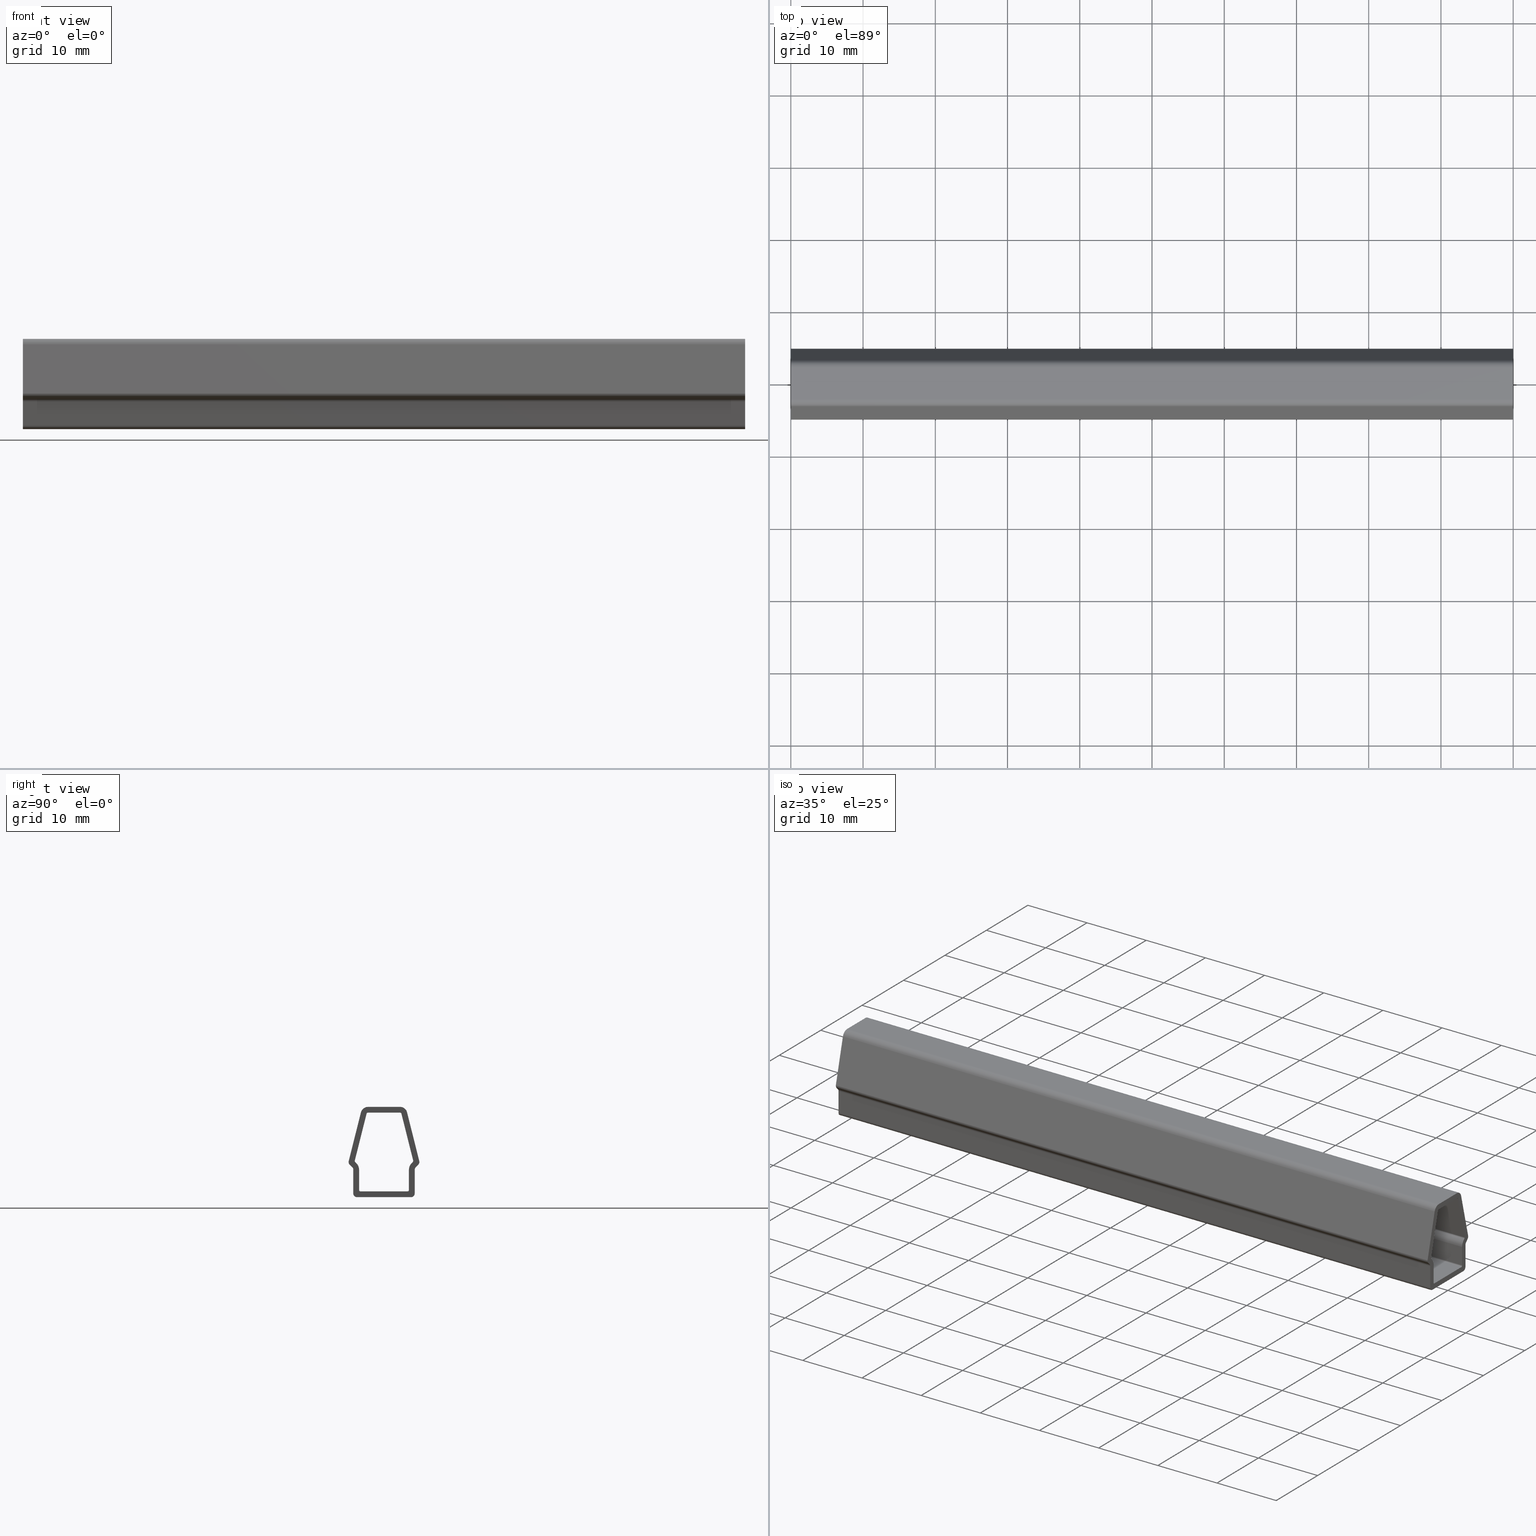
[diagram: canonical four-view strip — front | top / right | iso, engineering-drawing reading convention]
A machine part, canonical four-view strip (front | top / right | iso — engineering-drawing reading convention). The complete STEP part file that produces these views, byte-faithful:
ISO-10303-21;
HEADER;
/****************************************************************
 * Generated by software with PDE/Lib inside                    *
 * PDElib Version v4.4, created Mon 02/23/2004                  *
 * International Technegroup Inc. (www.iti-oh.com)              *
 ****************************************************************/
FILE_DESCRIPTION(('STEP AP203'),'2;1');
FILE_NAME('21.021.00.stp','2011-02-14T09:08:29',(''),(''),'2009.3.110','THINKDESIGN','');
FILE_SCHEMA(('CONFIG_CONTROL_DESIGN'));
ENDSEC;
DATA;
#2=CARTESIAN_POINT('',(100.000000009999990,-3.848279365318895,5.013407116904034));
#3=DIRECTION('',(-1.0,0.0,0.0));
#4=DIRECTION('',(0.0,0.992448656487233,-0.122660768938917));
#5=AXIS2_PLACEMENT_3D('',#2,#3,#4);
#6=CYLINDRICAL_SURFACE('',#5,0.200000000000004);
#7=CARTESIAN_POINT('',(100.0,-4.042261099624227,5.062100923038884));
#8=VERTEX_POINT('',#7);
#9=CARTESIAN_POINT('',(100.0,-4.048279365318905,5.013407116904034));
#10=VERTEX_POINT('',#9);
#11=CARTESIAN_POINT('',(100.0,-3.848279365318895,5.013407116904034));
#12=DIRECTION('',(1.0,0.0,0.0));
#13=DIRECTION('',(0.0,1.0,-6.123234E-017));
#14=AXIS2_PLACEMENT_3D('',#11,#12,#13);
#15=CIRCLE('',#14,0.200000000000004);
#16=EDGE_CURVE('',#8,#10,#15,.T.);
#17=ORIENTED_EDGE('',*,*,#16,.T.);
#18=CARTESIAN_POINT('',(0.0,-4.048279365318905,5.013407116904034));
#19=VERTEX_POINT('',#18);
#20=CARTESIAN_POINT('',(100.0,-4.048279365318905,5.013407116904034));
#21=DIRECTION('',(-1.0,0.0,0.0));
#22=VECTOR('',#21,100.0);
#23=LINE('',#20,#22);
#24=EDGE_CURVE('',#10,#19,#23,.T.);
#25=ORIENTED_EDGE('',*,*,#24,.T.);
#26=CARTESIAN_POINT('',(0.0,-4.042261099624227,5.062100923038884));
#27=VERTEX_POINT('',#26);
#28=CARTESIAN_POINT('',(0.0,-3.848279365318895,5.013407116904034));
#29=DIRECTION('',(-1.0,0.0,0.0));
#30=DIRECTION('',(0.0,1.0,-6.123234E-017));
#31=AXIS2_PLACEMENT_3D('',#28,#29,#30);
#32=CIRCLE('',#31,0.200000000000004);
#33=EDGE_CURVE('',#19,#27,#32,.T.);
#34=ORIENTED_EDGE('',*,*,#33,.T.);
#35=CARTESIAN_POINT('',(100.0,-4.042261099624227,5.062100923038884));
#36=DIRECTION('',(-1.0,0.0,0.0));
#37=VECTOR('',#36,100.0);
#38=LINE('',#35,#37);
#39=EDGE_CURVE('',#8,#27,#38,.T.);
#40=ORIENTED_EDGE('',*,*,#39,.F.);
#41=EDGE_LOOP('',(#17,#25,#34,#40));
#42=FACE_OUTER_BOUND('',#41,.T.);
#43=ADVANCED_FACE('',(#42),#6,.F.);
#44=CARTESIAN_POINT('',(100.000000009999990,-4.402235978646701,4.860256949045294));
#45=DIRECTION('',(-1.0,0.0,0.0));
#46=DIRECTION('',(0.0,0.923879532511289,0.382683432365085));
#47=AXIS2_PLACEMENT_3D('',#44,#45,#46);
#48=CYLINDRICAL_SURFACE('',#47,0.500000000000004);
#49=CARTESIAN_POINT('',(100.0,-4.902235978646708,4.860256949045294));
#50=VERTEX_POINT('',#49);
#51=CARTESIAN_POINT('',(100.0,-4.755789369239977,4.506703558452024));
#52=VERTEX_POINT('',#51);
#53=CARTESIAN_POINT('',(100.0,-4.402235978646701,4.860256949045294));
#54=DIRECTION('',(1.0,0.0,0.0));
#55=DIRECTION('',(0.0,1.0,-6.123234E-017));
#56=AXIS2_PLACEMENT_3D('',#53,#54,#55);
#57=CIRCLE('',#56,0.500000000000004);
#58=EDGE_CURVE('',#50,#52,#57,.T.);
#59=ORIENTED_EDGE('',*,*,#58,.F.);
#60=CARTESIAN_POINT('',(0.0,-4.902235978646708,4.860256949045294));
#61=VERTEX_POINT('',#60);
#62=CARTESIAN_POINT('',(100.0,-4.902235978646708,4.860256949045294));
#63=DIRECTION('',(-1.0,0.0,0.0));
#64=VECTOR('',#63,100.0);
#65=LINE('',#62,#64);
#66=EDGE_CURVE('',#50,#61,#65,.T.);
#67=ORIENTED_EDGE('',*,*,#66,.T.);
#68=CARTESIAN_POINT('',(0.0,-4.755789369239977,4.506703558452024));
#69=VERTEX_POINT('',#68);
#70=CARTESIAN_POINT('',(0.0,-4.402235978646701,4.860256949045294));
#71=DIRECTION('',(1.0,0.0,0.0));
#72=DIRECTION('',(0.0,1.0,-6.123234E-017));
#73=AXIS2_PLACEMENT_3D('',#70,#71,#72);
#74=CIRCLE('',#73,0.500000000000004);
#75=EDGE_CURVE('',#61,#69,#74,.T.);
#76=ORIENTED_EDGE('',*,*,#75,.T.);
#77=CARTESIAN_POINT('',(100.0,-4.755789369239977,4.506703558452024));
#78=DIRECTION('',(-1.0,0.0,0.0));
#79=VECTOR('',#78,100.0);
#80=LINE('',#77,#79);
#81=EDGE_CURVE('',#52,#69,#80,.T.);
#82=ORIENTED_EDGE('',*,*,#81,.F.);
#83=EDGE_LOOP('',(#59,#67,#76,#82));
#84=FACE_OUTER_BOUND('',#83,.T.);
#85=ADVANCED_FACE('',(#84),#48,.T.);
#86=CARTESIAN_POINT('',(100.000000009999990,-2.219997726038471,11.499999999999993));
#87=DIRECTION('',(-1.0,0.0,0.0));
#88=DIRECTION('',(0.0,-1.0,6.123234E-017));
#89=AXIS2_PLACEMENT_3D('',#86,#87,#88);
#90=CYLINDRICAL_SURFACE('',#89,1.000000000000001);
#91=CARTESIAN_POINT('',(0.0,-2.219997726038471,12.499999999999993));
#92=VERTEX_POINT('',#91);
#93=CARTESIAN_POINT('',(0.0,-3.189906397565096,11.743469030674213));
#94=VERTEX_POINT('',#93);
#95=CARTESIAN_POINT('',(0.0,-2.219997726038471,11.499999999999993));
#96=DIRECTION('',(1.0,0.0,0.0));
#97=DIRECTION('',(0.0,-1.0,6.123234E-017));
#98=AXIS2_PLACEMENT_3D('',#95,#96,#97);
#99=CIRCLE('',#98,1.000000000000001);
#100=EDGE_CURVE('',#92,#94,#99,.T.);
#101=ORIENTED_EDGE('',*,*,#100,.T.);
#102=CARTESIAN_POINT('',(100.0,-3.189906397565096,11.743469030674213));
#103=VERTEX_POINT('',#102);
#104=CARTESIAN_POINT('',(100.0,-3.189906397565096,11.743469030674213));
#105=DIRECTION('',(-1.0,0.0,0.0));
#106=VECTOR('',#105,100.0);
#107=LINE('',#104,#106);
#108=EDGE_CURVE('',#103,#94,#107,.T.);
#109=ORIENTED_EDGE('',*,*,#108,.F.);
#110=CARTESIAN_POINT('',(100.0,-2.219997726038471,12.499999999999993));
#111=VERTEX_POINT('',#110);
#112=CARTESIAN_POINT('',(100.0,-2.219997726038471,11.499999999999993));
#113=DIRECTION('',(1.0,0.0,0.0));
#114=DIRECTION('',(0.0,-1.0,6.123234E-017));
#115=AXIS2_PLACEMENT_3D('',#112,#113,#114);
#116=CIRCLE('',#115,1.000000000000001);
#117=EDGE_CURVE('',#111,#103,#116,.T.);
#118=ORIENTED_EDGE('',*,*,#117,.F.);
#119=CARTESIAN_POINT('',(100.0,-2.219997726038471,12.499999999999993));
#120=DIRECTION('',(-1.0,0.0,0.0));
#121=VECTOR('',#120,100.0);
#122=LINE('',#119,#121);
#123=EDGE_CURVE('',#111,#92,#122,.T.);
#124=ORIENTED_EDGE('',*,*,#123,.T.);
#125=EDGE_LOOP('',(#101,#109,#118,#124));
#126=FACE_OUTER_BOUND('',#125,.T.);
#127=ADVANCED_FACE('',(#126),#90,.T.);
#128=CARTESIAN_POINT('',(105.0,-3.105042201722849,12.081542908988805));
#129=DIRECTION('',(0.0,0.969908671526631,-0.243469030674224));
#130=DIRECTION('',(0.0,-0.243469030674224,-0.969908671526631));
#131=AXIS2_PLACEMENT_3D('',#128,#129,#130);
#132=PLANE('',#131);
#133=CARTESIAN_POINT('',(0.0,-4.887190314410020,4.981991464382389));
#134=VERTEX_POINT('',#133);
#135=CARTESIAN_POINT('',(0.0,-3.189906397565096,11.743469030674213));
#136=DIRECTION('',(0.0,-0.243469030674224,-0.969908671526631));
#137=VECTOR('',#136,6.971251793892404);
#138=LINE('',#135,#137);
#139=EDGE_CURVE('',#94,#134,#138,.T.);
#140=ORIENTED_EDGE('',*,*,#139,.T.);
#141=CARTESIAN_POINT('',(100.0,-4.887190314410020,4.981991464382389));
#142=VERTEX_POINT('',#141);
#143=CARTESIAN_POINT('',(100.0,-4.887190314410020,4.981991464382389));
#144=DIRECTION('',(-1.0,0.0,0.0));
#145=VECTOR('',#144,100.0);
#146=LINE('',#143,#145);
#147=EDGE_CURVE('',#142,#134,#146,.T.);
#148=ORIENTED_EDGE('',*,*,#147,.F.);
#149=CARTESIAN_POINT('',(100.0,-3.189906397565096,11.743469030674213));
#150=DIRECTION('',(0.0,-0.243469030674224,-0.969908671526631));
#151=VECTOR('',#150,6.971251793892404);
#152=LINE('',#149,#151);
#153=EDGE_CURVE('',#103,#142,#152,.T.);
#154=ORIENTED_EDGE('',*,*,#153,.F.);
#155=ORIENTED_EDGE('',*,*,#108,.T.);
#156=EDGE_LOOP('',(#140,#148,#154,#155));
#157=FACE_OUTER_BOUND('',#156,.T.);
#158=ADVANCED_FACE('',(#157),#132,.F.);
#159=CARTESIAN_POINT('',(100.000000009999990,-4.402235978646701,4.860256949045301));
#160=DIRECTION('',(-1.0,0.0,0.0));
#161=DIRECTION('',(0.0,0.992448656487236,-0.122660768938892));
#162=AXIS2_PLACEMENT_3D('',#159,#160,#161);
#163=CYLINDRICAL_SURFACE('',#162,0.500000000000004);
#164=ORIENTED_EDGE('',*,*,#66,.F.);
#165=CARTESIAN_POINT('',(100.0,-4.402235978646701,4.860256949045294));
#166=DIRECTION('',(1.0,0.0,0.0));
#167=DIRECTION('',(0.0,1.0,-6.123234E-017));
#168=AXIS2_PLACEMENT_3D('',#165,#166,#167);
#169=CIRCLE('',#168,0.500000000000004);
#170=EDGE_CURVE('',#142,#50,#169,.T.);
#171=ORIENTED_EDGE('',*,*,#170,.F.);
#172=ORIENTED_EDGE('',*,*,#147,.T.);
#173=CARTESIAN_POINT('',(0.0,-4.402235978646701,4.860256949045294));
#174=DIRECTION('',(1.0,0.0,0.0));
#175=DIRECTION('',(0.0,1.0,-6.123234E-017));
#176=AXIS2_PLACEMENT_3D('',#173,#174,#175);
#177=CIRCLE('',#176,0.500000000000004);
#178=EDGE_CURVE('',#134,#61,#177,.T.);
#179=ORIENTED_EDGE('',*,*,#178,.T.);
#180=EDGE_LOOP('',(#164,#171,#172,#179));
#181=FACE_OUTER_BOUND('',#180,.T.);
#182=ADVANCED_FACE('',(#181),#163,.T.);
#183=CARTESIAN_POINT('',(105.0,-4.773802216692253,4.524716405904279));
#184=DIRECTION('',(0.0,0.707106781186554,0.707106781186541));
#185=DIRECTION('',(0.0,0.707106781186541,-0.707106781186554));
#186=AXIS2_PLACEMENT_3D('',#183,#184,#185);
#187=PLANE('',#186);
#188=CARTESIAN_POINT('',(0.0,-4.395532420194698,4.146446609406716));
#189=VERTEX_POINT('',#188);
#190=CARTESIAN_POINT('',(0.0,-4.755789369239992,4.506703558452017));
#191=DIRECTION('',(0.0,0.707106781186540,-0.707106781186554));
#192=VECTOR('',#191,0.509480263279012);
#193=LINE('',#190,#192);
#194=EDGE_CURVE('',#69,#189,#193,.T.);
#195=ORIENTED_EDGE('',*,*,#194,.T.);
#196=CARTESIAN_POINT('',(100.0,-4.395532420194698,4.146446609406716));
#197=VERTEX_POINT('',#196);
#198=CARTESIAN_POINT('',(100.0,-4.395532420194698,4.146446609406716));
#199=DIRECTION('',(-1.0,0.0,0.0));
#200=VECTOR('',#199,100.0);
#201=LINE('',#198,#200);
#202=EDGE_CURVE('',#197,#189,#201,.T.);
#203=ORIENTED_EDGE('',*,*,#202,.F.);
#204=CARTESIAN_POINT('',(100.0,-4.755789369239992,4.506703558452017));
#205=DIRECTION('',(0.0,0.707106781186540,-0.707106781186554));
#206=VECTOR('',#205,0.509480263279012);
#207=LINE('',#204,#206);
#208=EDGE_CURVE('',#52,#197,#207,.T.);
#209=ORIENTED_EDGE('',*,*,#208,.F.);
#210=ORIENTED_EDGE('',*,*,#81,.T.);
#211=EDGE_LOOP('',(#195,#203,#209,#210));
#212=FACE_OUTER_BOUND('',#211,.T.);
#213=ADVANCED_FACE('',(#212),#187,.F.);
#214=CARTESIAN_POINT('',(100.000000009999990,-4.749085810787975,3.792893218813447));
#215=DIRECTION('',(-1.0,0.0,0.0));
#216=DIRECTION('',(0.0,-1.0,6.123234E-017));
#217=AXIS2_PLACEMENT_3D('',#214,#215,#216);
#218=CYLINDRICAL_SURFACE('',#217,0.500000000000002);
#219=CARTESIAN_POINT('',(0.0,-4.249085810787975,3.792893218813447));
#220=VERTEX_POINT('',#219);
#221=CARTESIAN_POINT('',(0.0,-4.749085810787975,3.792893218813447));
#222=DIRECTION('',(-1.0,0.0,0.0));
#223=DIRECTION('',(0.0,-1.0,6.123234E-017));
#224=AXIS2_PLACEMENT_3D('',#221,#222,#223);
#225=CIRCLE('',#224,0.500000000000002);
#226=EDGE_CURVE('',#189,#220,#225,.T.);
#227=ORIENTED_EDGE('',*,*,#226,.T.);
#228=CARTESIAN_POINT('',(100.0,-4.249085810787975,3.792893218813447));
#229=VERTEX_POINT('',#228);
#230=CARTESIAN_POINT('',(100.0,-4.249085810787975,3.792893218813447));
#231=DIRECTION('',(-1.0,0.0,0.0));
#232=VECTOR('',#231,100.0);
#233=LINE('',#230,#232);
#234=EDGE_CURVE('',#229,#220,#233,.T.);
#235=ORIENTED_EDGE('',*,*,#234,.F.);
#236=CARTESIAN_POINT('',(100.0,-4.749085810787975,3.792893218813447));
#237=DIRECTION('',(-1.0,0.0,0.0));
#238=DIRECTION('',(0.0,-1.0,6.123234E-017));
#239=AXIS2_PLACEMENT_3D('',#236,#237,#238);
#240=CIRCLE('',#239,0.500000000000002);
#241=EDGE_CURVE('',#197,#229,#240,.T.);
#242=ORIENTED_EDGE('',*,*,#241,.F.);
#243=ORIENTED_EDGE('',*,*,#202,.T.);
#244=EDGE_LOOP('',(#227,#235,#242,#243));
#245=FACE_OUTER_BOUND('',#244,.T.);
#246=ADVANCED_FACE('',(#245),#218,.F.);
#247=CARTESIAN_POINT('',(105.0,-4.249085810787975,0.335355339059326));
#248=DIRECTION('',(0.0,1.0,0.0));
#249=DIRECTION('',(-1.0,0.0,0.0));
#250=AXIS2_PLACEMENT_3D('',#247,#248,#249);
#251=PLANE('',#250);
#252=CARTESIAN_POINT('',(0.0,-4.249085810787975,0.500000000000000));
#253=VERTEX_POINT('',#252);
#254=CARTESIAN_POINT('',(0.0,-4.249085810787975,3.792893218813447));
#255=DIRECTION('',(0.0,0.0,-1.0));
#256=VECTOR('',#255,3.292893218813447);
#257=LINE('',#254,#256);
#258=EDGE_CURVE('',#220,#253,#257,.T.);
#259=ORIENTED_EDGE('',*,*,#258,.T.);
#260=CARTESIAN_POINT('',(100.0,-4.249085810787975,0.500000000000000));
#261=VERTEX_POINT('',#260);
#262=CARTESIAN_POINT('',(100.0,-4.249085810787975,0.500000000000000));
#263=DIRECTION('',(-1.0,0.0,0.0));
#264=VECTOR('',#263,100.0);
#265=LINE('',#262,#264);
#266=EDGE_CURVE('',#261,#253,#265,.T.);
#267=ORIENTED_EDGE('',*,*,#266,.F.);
#268=CARTESIAN_POINT('',(100.0,-4.249085810787975,3.792893218813447));
#269=DIRECTION('',(0.0,0.0,-1.0));
#270=VECTOR('',#269,3.292893218813447);
#271=LINE('',#268,#270);
#272=EDGE_CURVE('',#229,#261,#271,.T.);
#273=ORIENTED_EDGE('',*,*,#272,.F.);
#274=ORIENTED_EDGE('',*,*,#234,.T.);
#275=EDGE_LOOP('',(#259,#267,#273,#274));
#276=FACE_OUTER_BOUND('',#275,.T.);
#277=ADVANCED_FACE('',(#276),#251,.F.);
#278=CARTESIAN_POINT('',(100.000000009999990,-3.749085810787975,0.500000000000000));
#279=DIRECTION('',(-1.0,0.0,0.0));
#280=DIRECTION('',(0.0,0.707106781186547,0.707106781186548));
#281=AXIS2_PLACEMENT_3D('',#278,#279,#280);
#282=CYLINDRICAL_SURFACE('',#281,0.500000000000001);
#283=CARTESIAN_POINT('',(0.0,-3.749085810787975,0.0));
#284=VERTEX_POINT('',#283);
#285=CARTESIAN_POINT('',(0.0,-3.749085810787975,0.500000000000000));
#286=DIRECTION('',(1.0,0.0,0.0));
#287=DIRECTION('',(0.0,1.0,-6.123234E-017));
#288=AXIS2_PLACEMENT_3D('',#285,#286,#287);
#289=CIRCLE('',#288,0.500000000000002);
#290=EDGE_CURVE('',#253,#284,#289,.T.);
#291=ORIENTED_EDGE('',*,*,#290,.T.);
#292=CARTESIAN_POINT('',(100.0,-3.749085810787975,0.0));
#293=VERTEX_POINT('',#292);
#294=CARTESIAN_POINT('',(100.0,-3.749085810787975,0.0));
#295=DIRECTION('',(-1.0,0.0,0.0));
#296=VECTOR('',#295,100.0);
#297=LINE('',#294,#296);
#298=EDGE_CURVE('',#293,#284,#297,.T.);
#299=ORIENTED_EDGE('',*,*,#298,.F.);
#300=CARTESIAN_POINT('',(100.0,-3.749085810787975,0.500000000000000));
#301=DIRECTION('',(1.0,0.0,0.0));
#302=DIRECTION('',(0.0,1.0,-6.123234E-017));
#303=AXIS2_PLACEMENT_3D('',#300,#301,#302);
#304=CIRCLE('',#303,0.500000000000002);
#305=EDGE_CURVE('',#261,#293,#304,.T.);
#306=ORIENTED_EDGE('',*,*,#305,.F.);
#307=ORIENTED_EDGE('',*,*,#266,.T.);
#308=EDGE_LOOP('',(#291,#299,#306,#307));
#309=FACE_OUTER_BOUND('',#308,.T.);
#310=ADVANCED_FACE('',(#309),#282,.T.);
#311=CARTESIAN_POINT('',(105.0,4.123994391866773,0.0));
#312=DIRECTION('',(0.0,0.0,1.0));
#313=DIRECTION('',(-1.0,0.0,0.0));
#314=AXIS2_PLACEMENT_3D('',#311,#312,#313);
#315=PLANE('',#314);
#316=CARTESIAN_POINT('',(0.0,3.749085810787975,0.0));
#317=VERTEX_POINT('',#316);
#318=CARTESIAN_POINT('',(0.0,-3.749085810787975,0.0));
#319=DIRECTION('',(0.0,1.0,0.0));
#320=VECTOR('',#319,7.498171621575949);
#321=LINE('',#318,#320);
#322=EDGE_CURVE('',#284,#317,#321,.T.);
#323=ORIENTED_EDGE('',*,*,#322,.T.);
#324=CARTESIAN_POINT('',(100.0,3.749085810787975,0.0));
#325=VERTEX_POINT('',#324);
#326=CARTESIAN_POINT('',(100.0,3.749085810787975,0.0));
#327=DIRECTION('',(-1.0,0.0,0.0));
#328=VECTOR('',#327,100.0);
#329=LINE('',#326,#328);
#330=EDGE_CURVE('',#325,#317,#329,.T.);
#331=ORIENTED_EDGE('',*,*,#330,.F.);
#332=CARTESIAN_POINT('',(100.0,-3.749085810787975,0.0));
#333=DIRECTION('',(0.0,1.0,0.0));
#334=VECTOR('',#333,7.498171621575949);
#335=LINE('',#332,#334);
#336=EDGE_CURVE('',#293,#325,#335,.T.);
#337=ORIENTED_EDGE('',*,*,#336,.F.);
#338=ORIENTED_EDGE('',*,*,#298,.T.);
#339=EDGE_LOOP('',(#323,#331,#337,#338));
#340=FACE_OUTER_BOUND('',#339,.T.);
#341=ADVANCED_FACE('',(#340),#315,.F.);
#342=CARTESIAN_POINT('',(100.000000009999990,3.749085810787975,0.500000000000000));
#343=DIRECTION('',(-1.0,0.0,0.0));
#344=DIRECTION('',(0.0,-1.0,6.123234E-017));
#345=AXIS2_PLACEMENT_3D('',#342,#343,#344);
#346=CYLINDRICAL_SURFACE('',#345,0.500000000000001);
#347=CARTESIAN_POINT('',(0.0,4.249085810787975,0.500000000000000));
#348=VERTEX_POINT('',#347);
#349=CARTESIAN_POINT('',(0.0,3.749085810787975,0.500000000000000));
#350=DIRECTION('',(1.0,0.0,0.0));
#351=DIRECTION('',(0.0,-1.0,6.123234E-017));
#352=AXIS2_PLACEMENT_3D('',#349,#350,#351);
#353=CIRCLE('',#352,0.500000000000001);
#354=EDGE_CURVE('',#317,#348,#353,.T.);
#355=ORIENTED_EDGE('',*,*,#354,.T.);
#356=CARTESIAN_POINT('',(100.0,4.249085810787975,0.500000000000000));
#357=VERTEX_POINT('',#356);
#358=CARTESIAN_POINT('',(100.0,4.249085810787975,0.500000000000000));
#359=DIRECTION('',(-1.0,0.0,0.0));
#360=VECTOR('',#359,100.0);
#361=LINE('',#358,#360);
#362=EDGE_CURVE('',#357,#348,#361,.T.);
#363=ORIENTED_EDGE('',*,*,#362,.F.);
#364=CARTESIAN_POINT('',(100.0,3.749085810787975,0.500000000000000));
#365=DIRECTION('',(1.0,0.0,0.0));
#366=DIRECTION('',(0.0,-1.0,6.123234E-017));
#367=AXIS2_PLACEMENT_3D('',#364,#365,#366);
#368=CIRCLE('',#367,0.500000000000001);
#369=EDGE_CURVE('',#325,#357,#368,.T.);
#370=ORIENTED_EDGE('',*,*,#369,.F.);
#371=ORIENTED_EDGE('',*,*,#330,.T.);
#372=EDGE_LOOP('',(#355,#363,#370,#371));
#373=FACE_OUTER_BOUND('',#372,.T.);
#374=ADVANCED_FACE('',(#373),#346,.T.);
#375=CARTESIAN_POINT('',(-5.0,4.249085810787975,0.335355339059326));
#376=DIRECTION('',(0.0,-1.0,0.0));
#377=DIRECTION('',(1.0,0.0,0.0));
#378=AXIS2_PLACEMENT_3D('',#375,#376,#377);
#379=PLANE('',#378);
#380=CARTESIAN_POINT('',(0.0,4.249085810787975,3.792893218813447));
#381=VERTEX_POINT('',#380);
#382=CARTESIAN_POINT('',(0.0,4.249085810787975,0.500000000000000));
#383=DIRECTION('',(0.0,0.0,1.0));
#384=VECTOR('',#383,3.292893218813447);
#385=LINE('',#382,#384);
#386=EDGE_CURVE('',#348,#381,#385,.T.);
#387=ORIENTED_EDGE('',*,*,#386,.T.);
#388=CARTESIAN_POINT('',(100.0,4.249085810787975,3.792893218813447));
#389=VERTEX_POINT('',#388);
#390=CARTESIAN_POINT('',(100.0,4.249085810787975,3.792893218813447));
#391=DIRECTION('',(-1.0,0.0,0.0));
#392=VECTOR('',#391,100.0);
#393=LINE('',#390,#392);
#394=EDGE_CURVE('',#389,#381,#393,.T.);
#395=ORIENTED_EDGE('',*,*,#394,.F.);
#396=CARTESIAN_POINT('',(100.0,4.249085810787975,0.500000000000000));
#397=DIRECTION('',(0.0,0.0,1.0));
#398=VECTOR('',#397,3.292893218813447);
#399=LINE('',#396,#398);
#400=EDGE_CURVE('',#357,#389,#399,.T.);
#401=ORIENTED_EDGE('',*,*,#400,.F.);
#402=ORIENTED_EDGE('',*,*,#362,.T.);
#403=EDGE_LOOP('',(#387,#395,#401,#402));
#404=FACE_OUTER_BOUND('',#403,.T.);
#405=ADVANCED_FACE('',(#404),#379,.F.);
#406=CARTESIAN_POINT('',(100.000000009999990,4.749085810787978,3.792893218813454));
#407=DIRECTION('',(-1.0,0.0,0.0));
#408=DIRECTION('',(0.0,0.923879532511287,-0.382683432365090));
#409=AXIS2_PLACEMENT_3D('',#406,#407,#408);
#410=CYLINDRICAL_SURFACE('',#409,0.500000000000004);
#411=CARTESIAN_POINT('',(0.0,4.395532420194705,4.146446609406716));
#412=VERTEX_POINT('',#411);
#413=CARTESIAN_POINT('',(0.0,4.749085810787978,3.792893218813447));
#414=DIRECTION('',(-1.0,0.0,0.0));
#415=DIRECTION('',(0.0,1.0,-6.123234E-017));
#416=AXIS2_PLACEMENT_3D('',#413,#414,#415);
#417=CIRCLE('',#416,0.500000000000004);
#418=EDGE_CURVE('',#381,#412,#417,.T.);
#419=ORIENTED_EDGE('',*,*,#418,.T.);
#420=CARTESIAN_POINT('',(100.0,4.395532420194705,4.146446609406716));
#421=VERTEX_POINT('',#420);
#422=CARTESIAN_POINT('',(100.0,4.395532420194705,4.146446609406716));
#423=DIRECTION('',(-1.0,0.0,0.0));
#424=VECTOR('',#423,100.0);
#425=LINE('',#422,#424);
#426=EDGE_CURVE('',#421,#412,#425,.T.);
#427=ORIENTED_EDGE('',*,*,#426,.F.);
#428=CARTESIAN_POINT('',(100.0,4.749085810787978,3.792893218813447));
#429=DIRECTION('',(-1.0,0.0,0.0));
#430=DIRECTION('',(0.0,1.0,-6.123234E-017));
#431=AXIS2_PLACEMENT_3D('',#428,#429,#430);
#432=CIRCLE('',#431,0.500000000000004);
#433=EDGE_CURVE('',#389,#421,#432,.T.);
#434=ORIENTED_EDGE('',*,*,#433,.F.);
#435=ORIENTED_EDGE('',*,*,#394,.T.);
#436=EDGE_LOOP('',(#419,#427,#434,#435));
#437=FACE_OUTER_BOUND('',#436,.T.);
#438=ADVANCED_FACE('',(#437),#410,.F.);
#439=CARTESIAN_POINT('',(105.0,4.377519572742440,4.128433761954454));
#440=DIRECTION('',(0.0,-0.707106781186548,0.707106781186548));
#441=DIRECTION('',(0.0,0.707106781186548,0.707106781186548));
#442=AXIS2_PLACEMENT_3D('',#439,#440,#441);
#443=PLANE('',#442);
#444=CARTESIAN_POINT('',(0.0,4.755789369239992,4.506703558452003));
#445=VERTEX_POINT('',#444);
#446=CARTESIAN_POINT('',(0.0,4.395532420194705,4.146446609406716));
#447=DIRECTION('',(0.0,0.707106781186547,0.707106781186547));
#448=VECTOR('',#447,0.509480263278997);
#449=LINE('',#446,#448);
#450=EDGE_CURVE('',#412,#445,#449,.T.);
#451=ORIENTED_EDGE('',*,*,#450,.T.);
#452=CARTESIAN_POINT('',(100.0,4.755789369239992,4.506703558452003));
#453=VERTEX_POINT('',#452);
#454=CARTESIAN_POINT('',(100.0,4.755789369239992,4.506703558452003));
#455=DIRECTION('',(-1.0,0.0,0.0));
#456=VECTOR('',#455,100.0);
#457=LINE('',#454,#456);
#458=EDGE_CURVE('',#453,#445,#457,.T.);
#459=ORIENTED_EDGE('',*,*,#458,.F.);
#460=CARTESIAN_POINT('',(100.0,4.395532420194705,4.146446609406716));
#461=DIRECTION('',(0.0,0.707106781186547,0.707106781186547));
#462=VECTOR('',#461,0.509480263278997);
#463=LINE('',#460,#462);
#464=EDGE_CURVE('',#421,#453,#463,.T.);
#465=ORIENTED_EDGE('',*,*,#464,.F.);
#466=ORIENTED_EDGE('',*,*,#426,.T.);
#467=EDGE_LOOP('',(#451,#459,#465,#466));
#468=FACE_OUTER_BOUND('',#467,.T.);
#469=ADVANCED_FACE('',(#468),#443,.F.);
#470=CARTESIAN_POINT('',(100.000000009999990,4.402235978646711,4.860256949045294));
#471=DIRECTION('',(-1.0,0.0,0.0));
#472=DIRECTION('',(0.0,-1.0,6.123234E-017));
#473=AXIS2_PLACEMENT_3D('',#470,#471,#472);
#474=CYLINDRICAL_SURFACE('',#473,0.500000000000001);
#475=CARTESIAN_POINT('',(0.0,4.887190314410038,4.981991464382389));
#476=VERTEX_POINT('',#475);
#477=CARTESIAN_POINT('',(0.0,4.402235978646711,4.860256949045294));
#478=DIRECTION('',(1.0,0.0,0.0));
#479=DIRECTION('',(0.0,-1.0,6.123234E-017));
#480=AXIS2_PLACEMENT_3D('',#477,#478,#479);
#481=CIRCLE('',#480,0.500000000000001);
#482=EDGE_CURVE('',#445,#476,#481,.T.);
#483=ORIENTED_EDGE('',*,*,#482,.T.);
#484=CARTESIAN_POINT('',(100.0,4.887190314410038,4.981991464382389));
#485=VERTEX_POINT('',#484);
#486=CARTESIAN_POINT('',(100.0,4.887190314410038,4.981991464382389));
#487=DIRECTION('',(-1.0,0.0,0.0));
#488=VECTOR('',#487,100.0);
#489=LINE('',#486,#488);
#490=EDGE_CURVE('',#485,#476,#489,.T.);
#491=ORIENTED_EDGE('',*,*,#490,.F.);
#492=CARTESIAN_POINT('',(100.0,4.402235978646711,4.860256949045294));
#493=DIRECTION('',(1.0,0.0,0.0));
#494=DIRECTION('',(0.0,-1.0,6.123234E-017));
#495=AXIS2_PLACEMENT_3D('',#492,#493,#494);
#496=CIRCLE('',#495,0.500000000000001);
#497=EDGE_CURVE('',#453,#485,#496,.T.);
#498=ORIENTED_EDGE('',*,*,#497,.F.);
#499=ORIENTED_EDGE('',*,*,#458,.T.);
#500=EDGE_LOOP('',(#483,#491,#498,#499));
#501=FACE_OUTER_BOUND('',#500,.T.);
#502=ADVANCED_FACE('',(#501),#474,.T.);
#503=CARTESIAN_POINT('',(105.0,4.972054510252281,4.643917586067794));
#504=DIRECTION('',(0.0,-0.969908671526631,-0.243469030674223));
#505=DIRECTION('',(0.0,-0.243469030674223,0.969908671526631));
#506=AXIS2_PLACEMENT_3D('',#503,#504,#505);
#507=PLANE('',#506);
#508=CARTESIAN_POINT('',(0.0,3.189906397565114,11.743469030674213));
#509=VERTEX_POINT('',#508);
#510=CARTESIAN_POINT('',(0.0,4.887190314410034,4.981991464382389));
#511=DIRECTION('',(0.0,-0.243469030674223,0.969908671526631));
#512=VECTOR('',#511,6.971251793892403);
#513=LINE('',#510,#512);
#514=EDGE_CURVE('',#476,#509,#513,.T.);
#515=ORIENTED_EDGE('',*,*,#514,.T.);
#516=CARTESIAN_POINT('',(100.0,3.189906397565114,11.743469030674213));
#517=VERTEX_POINT('',#516);
#518=CARTESIAN_POINT('',(100.0,3.189906397565114,11.743469030674213));
#519=DIRECTION('',(-1.0,0.0,0.0));
#520=VECTOR('',#519,100.0);
#521=LINE('',#518,#520);
#522=EDGE_CURVE('',#517,#509,#521,.T.);
#523=ORIENTED_EDGE('',*,*,#522,.F.);
#524=CARTESIAN_POINT('',(100.0,4.887190314410034,4.981991464382389));
#525=DIRECTION('',(0.0,-0.243469030674223,0.969908671526631));
#526=VECTOR('',#525,6.971251793892403);
#527=LINE('',#524,#526);
#528=EDGE_CURVE('',#485,#517,#527,.T.);
#529=ORIENTED_EDGE('',*,*,#528,.F.);
#530=ORIENTED_EDGE('',*,*,#490,.T.);
#531=EDGE_LOOP('',(#515,#523,#529,#530));
#532=FACE_OUTER_BOUND('',#531,.T.);
#533=ADVANCED_FACE('',(#532),#507,.F.);
#534=CARTESIAN_POINT('',(100.000000009999990,2.219997726038478,11.499999999999993));
#535=DIRECTION('',(-1.0,0.0,0.0));
#536=DIRECTION('',(0.0,-1.0,6.123234E-017));
#537=AXIS2_PLACEMENT_3D('',#534,#535,#536);
#538=CYLINDRICAL_SURFACE('',#537,0.999999999999998);
#539=CARTESIAN_POINT('',(0.0,2.219997726038478,12.499999999999993));
#540=VERTEX_POINT('',#539);
#541=CARTESIAN_POINT('',(0.0,2.219997726038478,11.499999999999993));
#542=DIRECTION('',(1.0,0.0,0.0));
#543=DIRECTION('',(0.0,-1.0,6.123234E-017));
#544=AXIS2_PLACEMENT_3D('',#541,#542,#543);
#545=CIRCLE('',#544,0.999999999999998);
#546=EDGE_CURVE('',#509,#540,#545,.T.);
#547=ORIENTED_EDGE('',*,*,#546,.T.);
#548=CARTESIAN_POINT('',(100.0,2.219997726038478,12.499999999999993));
#549=VERTEX_POINT('',#548);
#550=CARTESIAN_POINT('',(100.0,2.219997726038478,12.499999999999993));
#551=DIRECTION('',(-1.0,0.0,0.0));
#552=VECTOR('',#551,100.0);
#553=LINE('',#550,#552);
#554=EDGE_CURVE('',#549,#540,#553,.T.);
#555=ORIENTED_EDGE('',*,*,#554,.F.);
#556=CARTESIAN_POINT('',(100.0,2.219997726038478,11.499999999999993));
#557=DIRECTION('',(1.0,0.0,0.0));
#558=DIRECTION('',(0.0,-1.0,6.123234E-017));
#559=AXIS2_PLACEMENT_3D('',#556,#557,#558);
#560=CIRCLE('',#559,0.999999999999998);
#561=EDGE_CURVE('',#517,#549,#560,.T.);
#562=ORIENTED_EDGE('',*,*,#561,.F.);
#563=ORIENTED_EDGE('',*,*,#522,.T.);
#564=EDGE_LOOP('',(#547,#555,#562,#563));
#565=FACE_OUTER_BOUND('',#564,.T.);
#566=ADVANCED_FACE('',(#565),#538,.T.);
#567=CARTESIAN_POINT('',(-5.0,2.441997498642326,12.499999999999993));
#568=DIRECTION('',(0.0,0.0,-1.0));
#569=DIRECTION('',(1.0,0.0,0.0));
#570=AXIS2_PLACEMENT_3D('',#567,#568,#569);
#571=PLANE('',#570);
#572=CARTESIAN_POINT('',(0.0,2.219997726038478,12.499999999999993));
#573=DIRECTION('',(0.0,-1.0,0.0));
#574=VECTOR('',#573,4.439995452076950);
#575=LINE('',#572,#574);
#576=EDGE_CURVE('',#540,#92,#575,.T.);
#577=ORIENTED_EDGE('',*,*,#576,.T.);
#578=ORIENTED_EDGE('',*,*,#123,.F.);
#579=CARTESIAN_POINT('',(100.0,2.219997726038478,12.499999999999993));
#580=DIRECTION('',(0.0,-1.0,0.0));
#581=VECTOR('',#580,4.439995452076950);
#582=LINE('',#579,#581);
#583=EDGE_CURVE('',#549,#111,#582,.T.);
#584=ORIENTED_EDGE('',*,*,#583,.F.);
#585=ORIENTED_EDGE('',*,*,#554,.T.);
#586=EDGE_LOOP('',(#577,#578,#584,#585));
#587=FACE_OUTER_BOUND('',#586,.T.);
#588=ADVANCED_FACE('',(#587),#571,.F.);
#589=CARTESIAN_POINT('',(100.0,-5.392456067698348,-0.625000000000000));
#590=DIRECTION('',(1.0,0.0,0.0));
#591=DIRECTION('',(0.0,1.0,0.0));
#592=AXIS2_PLACEMENT_3D('',#589,#590,#591);
#593=PLANE('',#592);
#594=ORIENTED_EDGE('',*,*,#117,.T.);
#595=ORIENTED_EDGE('',*,*,#153,.T.);
#596=ORIENTED_EDGE('',*,*,#170,.T.);
#597=ORIENTED_EDGE('',*,*,#58,.T.);
#598=ORIENTED_EDGE('',*,*,#208,.T.);
#599=ORIENTED_EDGE('',*,*,#241,.T.);
#600=ORIENTED_EDGE('',*,*,#272,.T.);
#601=ORIENTED_EDGE('',*,*,#305,.T.);
#602=ORIENTED_EDGE('',*,*,#336,.T.);
#603=ORIENTED_EDGE('',*,*,#369,.T.);
#604=ORIENTED_EDGE('',*,*,#400,.T.);
#605=ORIENTED_EDGE('',*,*,#433,.T.);
#606=ORIENTED_EDGE('',*,*,#464,.T.);
#607=ORIENTED_EDGE('',*,*,#497,.T.);
#608=ORIENTED_EDGE('',*,*,#528,.T.);
#609=ORIENTED_EDGE('',*,*,#561,.T.);
#610=ORIENTED_EDGE('',*,*,#583,.T.);
#611=EDGE_LOOP('',(#594,#595,#596,#597,#598,#599,#600,#601,#602,#603,#604,#605,#606,#607,#608,#609,#610));
#612=FACE_OUTER_BOUND('',#611,.T.);
#613=CARTESIAN_POINT('',(100.0,2.413979460343803,11.548693806134835));
#614=VERTEX_POINT('',#613);
#615=CARTESIAN_POINT('',(100.0,2.219997726038478,11.699999999999992));
#616=VERTEX_POINT('',#615);
#617=CARTESIAN_POINT('',(100.0,2.219997726038471,11.499999999999993));
#618=DIRECTION('',(1.0,0.0,0.0));
#619=DIRECTION('',(0.0,1.0,-6.123234E-017));
#620=AXIS2_PLACEMENT_3D('',#617,#618,#619);
#621=CIRCLE('',#620,0.200000000000002);
#622=EDGE_CURVE('',#614,#616,#621,.T.);
#623=ORIENTED_EDGE('',*,*,#622,.F.);
#624=CARTESIAN_POINT('',(100.0,4.042261099624245,5.062100923038884));
#625=VERTEX_POINT('',#624);
#626=CARTESIAN_POINT('',(100.0,4.042261099624234,5.062100923038884));
#627=DIRECTION('',(0.0,-0.243469030674223,0.969908671526631));
#628=VECTOR('',#627,6.687838838357935);
#629=LINE('',#626,#628);
#630=EDGE_CURVE('',#625,#614,#629,.T.);
#631=ORIENTED_EDGE('',*,*,#630,.F.);
#632=CARTESIAN_POINT('',(100.0,3.989700721556226,4.871985760666725));
#633=VERTEX_POINT('',#632);
#634=CARTESIAN_POINT('',(100.0,3.848279365318909,5.013407116904034));
#635=DIRECTION('',(1.0,0.0,0.0));
#636=DIRECTION('',(0.0,1.0,-6.123234E-017));
#637=AXIS2_PLACEMENT_3D('',#634,#635,#636);
#638=CIRCLE('',#637,0.200000000000006);
#639=EDGE_CURVE('',#633,#625,#638,.T.);
#640=ORIENTED_EDGE('',*,*,#639,.F.);
#641=CARTESIAN_POINT('',(100.0,3.829846995245454,4.712132034355960));
#642=VERTEX_POINT('',#641);
#643=CARTESIAN_POINT('',(100.0,3.829846995245450,4.712132034355967));
#644=DIRECTION('',(0.0,0.707106781186555,0.707106781186540));
#645=VECTOR('',#644,0.226067307744562);
#646=LINE('',#643,#645);
#647=EDGE_CURVE('',#642,#633,#646,.T.);
#648=ORIENTED_EDGE('',*,*,#647,.F.);
#649=CARTESIAN_POINT('',(100.0,3.449085810787988,3.792893218813475));
#650=VERTEX_POINT('',#649);
#651=CARTESIAN_POINT('',(100.0,4.749085810787989,3.792893218813475));
#652=DIRECTION('',(-1.0,0.0,0.0));
#653=DIRECTION('',(0.0,1.0,-6.123234E-017));
#654=AXIS2_PLACEMENT_3D('',#651,#652,#653);
#655=CIRCLE('',#654,1.300000000000002);
#656=EDGE_CURVE('',#650,#642,#655,.T.);
#657=ORIENTED_EDGE('',*,*,#656,.F.);
#658=CARTESIAN_POINT('',(100.0,3.449085810787974,1.0));
#659=VERTEX_POINT('',#658);
#660=CARTESIAN_POINT('',(100.0,3.449085810787974,1.0));
#661=DIRECTION('',(0.0,0.0,1.0));
#662=VECTOR('',#661,2.792893218813475);
#663=LINE('',#660,#662);
#664=EDGE_CURVE('',#659,#650,#663,.T.);
#665=ORIENTED_EDGE('',*,*,#664,.F.);
#666=CARTESIAN_POINT('',(100.0,3.249085810787975,0.799999999999997));
#667=VERTEX_POINT('',#666);
#668=CARTESIAN_POINT('',(100.0,3.249085810787975,1.0));
#669=DIRECTION('',(1.0,0.0,0.0));
#670=DIRECTION('',(0.0,1.0,-6.123234E-017));
#671=AXIS2_PLACEMENT_3D('',#668,#669,#670);
#672=CIRCLE('',#671,0.199999999999999);
#673=EDGE_CURVE('',#667,#659,#672,.T.);
#674=ORIENTED_EDGE('',*,*,#673,.F.);
#675=CARTESIAN_POINT('',(100.0,-3.249085810787975,0.799999999999997));
#676=VERTEX_POINT('',#675);
#677=CARTESIAN_POINT('',(100.0,-3.249085810787975,0.799999999999997));
#678=DIRECTION('',(0.0,1.0,0.0));
#679=VECTOR('',#678,6.498171621575949);
#680=LINE('',#677,#679);
#681=EDGE_CURVE('',#676,#667,#680,.T.);
#682=ORIENTED_EDGE('',*,*,#681,.F.);
#683=CARTESIAN_POINT('',(100.0,-3.449085810787970,1.0));
#684=VERTEX_POINT('',#683);
#685=CARTESIAN_POINT('',(100.0,-3.249085810787975,1.0));
#686=DIRECTION('',(1.0,0.0,0.0));
#687=DIRECTION('',(0.0,1.0,-6.123234E-017));
#688=AXIS2_PLACEMENT_3D('',#685,#686,#687);
#689=CIRCLE('',#688,0.199999999999999);
#690=EDGE_CURVE('',#684,#676,#689,.T.);
#691=ORIENTED_EDGE('',*,*,#690,.F.);
#692=CARTESIAN_POINT('',(100.0,-3.449085810787970,3.792893218813447));
#693=VERTEX_POINT('',#692);
#694=CARTESIAN_POINT('',(100.0,-3.449085810787970,3.792893218813447));
#695=DIRECTION('',(0.0,0.0,-1.0));
#696=VECTOR('',#695,2.792893218813447);
#697=LINE('',#694,#696);
#698=EDGE_CURVE('',#693,#684,#697,.T.);
#699=ORIENTED_EDGE('',*,*,#698,.F.);
#700=CARTESIAN_POINT('',(100.0,-3.829846995245454,4.712132034355960));
#701=VERTEX_POINT('',#700);
#702=CARTESIAN_POINT('',(100.0,-4.749085810787975,3.792893218813447));
#703=DIRECTION('',(-1.0,0.0,0.0));
#704=DIRECTION('',(0.0,1.0,-6.123234E-017));
#705=AXIS2_PLACEMENT_3D('',#702,#703,#704);
#706=CIRCLE('',#705,1.299999999999998);
#707=EDGE_CURVE('',#701,#693,#706,.T.);
#708=ORIENTED_EDGE('',*,*,#707,.F.);
#709=CARTESIAN_POINT('',(100.0,-3.989700721556211,4.871985760666718));
#710=VERTEX_POINT('',#709);
#711=CARTESIAN_POINT('',(100.0,-3.989700721556211,4.871985760666718));
#712=DIRECTION('',(0.0,0.707106781186544,-0.707106781186551));
#713=VECTOR('',#712,0.226067307744549);
#714=LINE('',#711,#713);
#715=EDGE_CURVE('',#710,#701,#714,.T.);
#716=ORIENTED_EDGE('',*,*,#715,.F.);
#717=CARTESIAN_POINT('',(100.0,-3.848279365318895,5.013407116904034));
#718=DIRECTION('',(1.0,0.0,0.0));
#719=DIRECTION('',(0.0,1.0,-6.123234E-017));
#720=AXIS2_PLACEMENT_3D('',#717,#718,#719);
#721=CIRCLE('',#720,0.200000000000004);
#722=EDGE_CURVE('',#10,#710,#721,.T.);
#723=ORIENTED_EDGE('',*,*,#722,.F.);
#724=ORIENTED_EDGE('',*,*,#16,.F.);
#725=CARTESIAN_POINT('',(100.0,-2.413979460343796,11.548693806134835));
#726=VERTEX_POINT('',#725);
#727=CARTESIAN_POINT('',(100.0,-2.413979460343796,11.548693806134835));
#728=DIRECTION('',(0.0,-0.243469030674223,-0.969908671526631));
#729=VECTOR('',#728,6.687838838357935);
#730=LINE('',#727,#729);
#731=EDGE_CURVE('',#726,#8,#730,.T.);
#732=ORIENTED_EDGE('',*,*,#731,.F.);
#733=CARTESIAN_POINT('',(100.0,-2.219997726038471,11.699999999999996));
#734=VERTEX_POINT('',#733);
#735=CARTESIAN_POINT('',(100.0,-2.219997726038464,11.499999999999993));
#736=DIRECTION('',(1.0,0.0,0.0));
#737=DIRECTION('',(0.0,1.0,-6.123234E-017));
#738=AXIS2_PLACEMENT_3D('',#735,#736,#737);
#739=CIRCLE('',#738,0.200000000000006);
#740=EDGE_CURVE('',#734,#726,#739,.T.);
#741=ORIENTED_EDGE('',*,*,#740,.F.);
#742=CARTESIAN_POINT('',(100.0,2.219997726038478,11.699999999999992));
#743=DIRECTION('',(0.0,-1.0,0.0));
#744=VECTOR('',#743,4.439995452076950);
#745=LINE('',#742,#744);
#746=EDGE_CURVE('',#616,#734,#745,.T.);
#747=ORIENTED_EDGE('',*,*,#746,.F.);
#748=EDGE_LOOP('',(#623,#631,#640,#648,#657,#665,#674,#682,#691,#699,#708,#716,#723,#724,#732,#741,#747));
#749=FACE_BOUND('',#748,.T.);
#750=ADVANCED_FACE('',(#612,#749),#593,.T.);
#751=CARTESIAN_POINT('',(0.0,-5.392456067698348,-0.625000000000000));
#752=DIRECTION('',(1.0,0.0,0.0));
#753=DIRECTION('',(0.0,1.0,0.0));
#754=AXIS2_PLACEMENT_3D('',#751,#752,#753);
#755=PLANE('',#754);
#756=ORIENTED_EDGE('',*,*,#100,.F.);
#757=ORIENTED_EDGE('',*,*,#576,.F.);
#758=ORIENTED_EDGE('',*,*,#546,.F.);
#759=ORIENTED_EDGE('',*,*,#514,.F.);
#760=ORIENTED_EDGE('',*,*,#482,.F.);
#761=ORIENTED_EDGE('',*,*,#450,.F.);
#762=ORIENTED_EDGE('',*,*,#418,.F.);
#763=ORIENTED_EDGE('',*,*,#386,.F.);
#764=ORIENTED_EDGE('',*,*,#354,.F.);
#765=ORIENTED_EDGE('',*,*,#322,.F.);
#766=ORIENTED_EDGE('',*,*,#290,.F.);
#767=ORIENTED_EDGE('',*,*,#258,.F.);
#768=ORIENTED_EDGE('',*,*,#226,.F.);
#769=ORIENTED_EDGE('',*,*,#194,.F.);
#770=ORIENTED_EDGE('',*,*,#75,.F.);
#771=ORIENTED_EDGE('',*,*,#178,.F.);
#772=ORIENTED_EDGE('',*,*,#139,.F.);
#773=EDGE_LOOP('',(#756,#757,#758,#759,#760,#761,#762,#763,#764,#765,#766,#767,#768,#769,#770,#771,#772));
#774=FACE_OUTER_BOUND('',#773,.T.);
#775=CARTESIAN_POINT('',(0.0,2.413979460343803,11.548693806134835));
#776=VERTEX_POINT('',#775);
#777=CARTESIAN_POINT('',(0.0,4.042261099624245,5.062100923038884));
#778=VERTEX_POINT('',#777);
#779=CARTESIAN_POINT('',(0.0,2.413979460343803,11.548693806134835));
#780=DIRECTION('',(0.0,0.243469030674223,-0.969908671526631));
#781=VECTOR('',#780,6.687838838357935);
#782=LINE('',#779,#781);
#783=EDGE_CURVE('',#776,#778,#782,.T.);
#784=ORIENTED_EDGE('',*,*,#783,.F.);
#785=CARTESIAN_POINT('',(0.0,2.219997726038478,11.699999999999992));
#786=VERTEX_POINT('',#785);
#787=CARTESIAN_POINT('',(0.0,2.219997726038471,11.499999999999993));
#788=DIRECTION('',(-1.0,0.0,0.0));
#789=DIRECTION('',(0.0,-1.0,6.123234E-017));
#790=AXIS2_PLACEMENT_3D('',#787,#788,#789);
#791=CIRCLE('',#790,0.200000000000002);
#792=EDGE_CURVE('',#786,#776,#791,.T.);
#793=ORIENTED_EDGE('',*,*,#792,.F.);
#794=CARTESIAN_POINT('',(0.0,-2.219997726038471,11.699999999999996));
#795=VERTEX_POINT('',#794);
#796=CARTESIAN_POINT('',(0.0,-2.219997726038471,11.699999999999992));
#797=DIRECTION('',(0.0,1.0,0.0));
#798=VECTOR('',#797,4.439995452076950);
#799=LINE('',#796,#798);
#800=EDGE_CURVE('',#795,#786,#799,.T.);
#801=ORIENTED_EDGE('',*,*,#800,.F.);
#802=CARTESIAN_POINT('',(0.0,-2.413979460343796,11.548693806134835));
#803=VERTEX_POINT('',#802);
#804=CARTESIAN_POINT('',(0.0,-2.219997726038464,11.499999999999993));
#805=DIRECTION('',(-1.0,0.0,0.0));
#806=DIRECTION('',(0.0,-1.0,6.123234E-017));
#807=AXIS2_PLACEMENT_3D('',#804,#805,#806);
#808=CIRCLE('',#807,0.200000000000006);
#809=EDGE_CURVE('',#803,#795,#808,.T.);
#810=ORIENTED_EDGE('',*,*,#809,.F.);
#811=CARTESIAN_POINT('',(0.0,-4.042261099624227,5.062100923038884));
#812=DIRECTION('',(0.0,0.243469030674223,0.969908671526631));
#813=VECTOR('',#812,6.687838838357935);
#814=LINE('',#811,#813);
#815=EDGE_CURVE('',#27,#803,#814,.T.);
#816=ORIENTED_EDGE('',*,*,#815,.F.);
#817=ORIENTED_EDGE('',*,*,#33,.F.);
#818=CARTESIAN_POINT('',(0.0,-3.989700721556211,4.871985760666718));
#819=VERTEX_POINT('',#818);
#820=CARTESIAN_POINT('',(0.0,-3.848279365318895,5.013407116904034));
#821=DIRECTION('',(-1.0,0.0,0.0));
#822=DIRECTION('',(0.0,1.0,-6.123234E-017));
#823=AXIS2_PLACEMENT_3D('',#820,#821,#822);
#824=CIRCLE('',#823,0.200000000000004);
#825=EDGE_CURVE('',#819,#19,#824,.T.);
#826=ORIENTED_EDGE('',*,*,#825,.F.);
#827=CARTESIAN_POINT('',(0.0,-3.829846995245454,4.712132034355960));
#828=VERTEX_POINT('',#827);
#829=CARTESIAN_POINT('',(0.0,-3.829846995245461,4.712132034355953));
#830=DIRECTION('',(0.0,-0.707106781186551,0.707106781186544));
#831=VECTOR('',#830,0.226067307744551);
#832=LINE('',#829,#831);
#833=EDGE_CURVE('',#828,#819,#832,.T.);
#834=ORIENTED_EDGE('',*,*,#833,.F.);
#835=CARTESIAN_POINT('',(0.0,-3.449085810787970,3.792893218813447));
#836=VERTEX_POINT('',#835);
#837=CARTESIAN_POINT('',(0.0,-4.749085810787975,3.792893218813447));
#838=DIRECTION('',(1.0,0.0,0.0));
#839=DIRECTION('',(0.0,-1.0,6.123234E-017));
#840=AXIS2_PLACEMENT_3D('',#837,#838,#839);
#841=CIRCLE('',#840,1.299999999999998);
#842=EDGE_CURVE('',#836,#828,#841,.T.);
#843=ORIENTED_EDGE('',*,*,#842,.F.);
#844=CARTESIAN_POINT('',(0.0,-3.449085810787970,1.0));
#845=VERTEX_POINT('',#844);
#846=CARTESIAN_POINT('',(0.0,-3.449085810787970,1.0));
#847=DIRECTION('',(0.0,0.0,1.0));
#848=VECTOR('',#847,2.792893218813447);
#849=LINE('',#846,#848);
#850=EDGE_CURVE('',#845,#836,#849,.T.);
#851=ORIENTED_EDGE('',*,*,#850,.F.);
#852=CARTESIAN_POINT('',(0.0,-3.249085810787975,0.799999999999997));
#853=VERTEX_POINT('',#852);
#854=CARTESIAN_POINT('',(0.0,-3.249085810787975,1.0));
#855=DIRECTION('',(-1.0,0.0,0.0));
#856=DIRECTION('',(0.0,1.0,-6.123234E-017));
#857=AXIS2_PLACEMENT_3D('',#854,#855,#856);
#858=CIRCLE('',#857,0.199999999999999);
#859=EDGE_CURVE('',#853,#845,#858,.T.);
#860=ORIENTED_EDGE('',*,*,#859,.F.);
#861=CARTESIAN_POINT('',(0.0,3.249085810787975,0.799999999999997));
#862=VERTEX_POINT('',#861);
#863=CARTESIAN_POINT('',(0.0,3.249085810787975,0.799999999999997));
#864=DIRECTION('',(0.0,-1.0,0.0));
#865=VECTOR('',#864,6.498171621575949);
#866=LINE('',#863,#865);
#867=EDGE_CURVE('',#862,#853,#866,.T.);
#868=ORIENTED_EDGE('',*,*,#867,.F.);
#869=CARTESIAN_POINT('',(0.0,3.449085810787974,1.0));
#870=VERTEX_POINT('',#869);
#871=CARTESIAN_POINT('',(0.0,3.249085810787975,1.0));
#872=DIRECTION('',(-1.0,0.0,0.0));
#873=DIRECTION('',(0.0,-1.0,6.123234E-017));
#874=AXIS2_PLACEMENT_3D('',#871,#872,#873);
#875=CIRCLE('',#874,0.199999999999999);
#876=EDGE_CURVE('',#870,#862,#875,.T.);
#877=ORIENTED_EDGE('',*,*,#876,.F.);
#878=CARTESIAN_POINT('',(0.0,3.449085810787988,3.792893218813475));
#879=VERTEX_POINT('',#878);
#880=CARTESIAN_POINT('',(0.0,3.449085810787974,3.792893218813475));
#881=DIRECTION('',(0.0,0.0,-1.0));
#882=VECTOR('',#881,2.792893218813475);
#883=LINE('',#880,#882);
#884=EDGE_CURVE('',#879,#870,#883,.T.);
#885=ORIENTED_EDGE('',*,*,#884,.F.);
#886=CARTESIAN_POINT('',(0.0,3.829846995245454,4.712132034355960));
#887=VERTEX_POINT('',#886);
#888=CARTESIAN_POINT('',(0.0,4.749085810787989,3.792893218813475));
#889=DIRECTION('',(1.0,0.0,0.0));
#890=DIRECTION('',(0.0,1.0,-6.123234E-017));
#891=AXIS2_PLACEMENT_3D('',#888,#889,#890);
#892=CIRCLE('',#891,1.300000000000002);
#893=EDGE_CURVE('',#887,#879,#892,.T.);
#894=ORIENTED_EDGE('',*,*,#893,.F.);
#895=CARTESIAN_POINT('',(0.0,3.989700721556226,4.871985760666725));
#896=VERTEX_POINT('',#895);
#897=CARTESIAN_POINT('',(0.0,3.989700721556226,4.871985760666725));
#898=DIRECTION('',(0.0,-0.707106781186555,-0.707106781186540));
#899=VECTOR('',#898,0.226067307744562);
#900=LINE('',#897,#899);
#901=EDGE_CURVE('',#896,#887,#900,.T.);
#902=ORIENTED_EDGE('',*,*,#901,.F.);
#903=CARTESIAN_POINT('',(0.0,3.848279365318909,5.013407116904034));
#904=DIRECTION('',(-1.0,0.0,0.0));
#905=DIRECTION('',(0.0,-1.0,6.123234E-017));
#906=AXIS2_PLACEMENT_3D('',#903,#904,#905);
#907=CIRCLE('',#906,0.200000000000006);
#908=EDGE_CURVE('',#778,#896,#907,.T.);
#909=ORIENTED_EDGE('',*,*,#908,.F.);
#910=EDGE_LOOP('',(#784,#793,#801,#810,#816,#817,#826,#834,#843,#851,#860,#868,#877,#885,#894,#902,#909));
#911=FACE_BOUND('',#910,.T.);
#912=ADVANCED_FACE('',(#774,#911),#755,.F.);
#913=CARTESIAN_POINT('',(100.000000009999990,2.219997726038471,11.499999999999993));
#914=DIRECTION('',(-1.0,0.0,0.0));
#915=DIRECTION('',(0.0,-1.0,6.123234E-017));
#916=AXIS2_PLACEMENT_3D('',#913,#914,#915);
#917=CYLINDRICAL_SURFACE('',#916,0.200000000000002);
#918=ORIENTED_EDGE('',*,*,#622,.T.);
#919=CARTESIAN_POINT('',(100.0,2.219997726038478,11.699999999999992));
#920=DIRECTION('',(-1.0,0.0,0.0));
#921=VECTOR('',#920,100.0);
#922=LINE('',#919,#921);
#923=EDGE_CURVE('',#616,#786,#922,.T.);
#924=ORIENTED_EDGE('',*,*,#923,.T.);
#925=ORIENTED_EDGE('',*,*,#792,.T.);
#926=CARTESIAN_POINT('',(100.0,2.413979460343803,11.548693806134835));
#927=DIRECTION('',(-1.0,0.0,0.0));
#928=VECTOR('',#927,100.0);
#929=LINE('',#926,#928);
#930=EDGE_CURVE('',#614,#776,#929,.T.);
#931=ORIENTED_EDGE('',*,*,#930,.F.);
#932=EDGE_LOOP('',(#918,#924,#925,#931));
#933=FACE_OUTER_BOUND('',#932,.T.);
#934=ADVANCED_FACE('',(#933),#917,.F.);
#935=CARTESIAN_POINT('',(105.0,2.332565378379783,11.873023450289633));
#936=DIRECTION('',(0.0,0.969908671526631,0.243469030674223));
#937=DIRECTION('',(0.0,0.243469030674223,-0.969908671526631));
#938=AXIS2_PLACEMENT_3D('',#935,#936,#937);
#939=PLANE('',#938);
#940=ORIENTED_EDGE('',*,*,#630,.T.);
#941=ORIENTED_EDGE('',*,*,#930,.T.);
#942=ORIENTED_EDGE('',*,*,#783,.T.);
#943=CARTESIAN_POINT('',(100.0,4.042261099624245,5.062100923038884));
#944=DIRECTION('',(-1.0,0.0,0.0));
#945=VECTOR('',#944,100.0);
#946=LINE('',#943,#945);
#947=EDGE_CURVE('',#625,#778,#946,.T.);
#948=ORIENTED_EDGE('',*,*,#947,.F.);
#949=EDGE_LOOP('',(#940,#941,#942,#948));
#950=FACE_OUTER_BOUND('',#949,.T.);
#951=ADVANCED_FACE('',(#950),#939,.F.);
#952=CARTESIAN_POINT('',(100.000000009999990,3.848279365318909,5.013407116904034));
#953=DIRECTION('',(-1.0,0.0,0.0));
#954=DIRECTION('',(0.0,-1.0,6.123234E-017));
#955=AXIS2_PLACEMENT_3D('',#952,#953,#954);
#956=CYLINDRICAL_SURFACE('',#955,0.200000000000006);
#957=ORIENTED_EDGE('',*,*,#639,.T.);
#958=ORIENTED_EDGE('',*,*,#947,.T.);
#959=ORIENTED_EDGE('',*,*,#908,.T.);
#960=CARTESIAN_POINT('',(100.0,3.989700721556226,4.871985760666725));
#961=DIRECTION('',(-1.0,0.0,0.0));
#962=VECTOR('',#961,100.0);
#963=LINE('',#960,#962);
#964=EDGE_CURVE('',#633,#896,#963,.T.);
#965=ORIENTED_EDGE('',*,*,#964,.F.);
#966=EDGE_LOOP('',(#957,#958,#959,#965));
#967=FACE_OUTER_BOUND('',#966,.T.);
#968=ADVANCED_FACE('',(#967),#956,.F.);
#969=CARTESIAN_POINT('',(105.0,3.997693407871761,4.879978446982264));
#970=DIRECTION('',(0.0,0.707106781186540,-0.707106781186555));
#971=DIRECTION('',(0.0,-0.707106781186555,-0.707106781186540));
#972=AXIS2_PLACEMENT_3D('',#969,#970,#971);
#973=PLANE('',#972);
#974=ORIENTED_EDGE('',*,*,#647,.T.);
#975=ORIENTED_EDGE('',*,*,#964,.T.);
#976=ORIENTED_EDGE('',*,*,#901,.T.);
#977=CARTESIAN_POINT('',(100.0,3.829846995245454,4.712132034355960));
#978=DIRECTION('',(-1.0,0.0,0.0));
#979=VECTOR('',#978,100.0);
#980=LINE('',#977,#979);
#981=EDGE_CURVE('',#642,#887,#980,.T.);
#982=ORIENTED_EDGE('',*,*,#981,.F.);
#983=EDGE_LOOP('',(#974,#975,#976,#982));
#984=FACE_OUTER_BOUND('',#983,.T.);
#985=ADVANCED_FACE('',(#984),#973,.F.);
#986=CARTESIAN_POINT('',(100.000000009999990,4.749085810787989,3.792893218813475));
#987=DIRECTION('',(-1.0,0.0,0.0));
#988=DIRECTION('',(0.0,0.923879532511292,-0.382683432365076));
#989=AXIS2_PLACEMENT_3D('',#986,#987,#988);
#990=CYLINDRICAL_SURFACE('',#989,1.300000000000002);
#991=ORIENTED_EDGE('',*,*,#656,.T.);
#992=ORIENTED_EDGE('',*,*,#981,.T.);
#993=ORIENTED_EDGE('',*,*,#893,.T.);
#994=CARTESIAN_POINT('',(100.0,3.449085810787988,3.792893218813475));
#995=DIRECTION('',(-1.0,0.0,0.0));
#996=VECTOR('',#995,100.0);
#997=LINE('',#994,#996);
#998=EDGE_CURVE('',#650,#879,#997,.T.);
#999=ORIENTED_EDGE('',*,*,#998,.F.);
#1000=EDGE_LOOP('',(#991,#992,#993,#999));
#1001=FACE_OUTER_BOUND('',#1000,.T.);
#1002=ADVANCED_FACE('',(#1001),#990,.T.);
#1003=CARTESIAN_POINT('',(105.0,3.449085810787974,0.860355339059325));
#1004=DIRECTION('',(0.0,1.0,0.0));
#1005=DIRECTION('',(-1.0,0.0,0.0));
#1006=AXIS2_PLACEMENT_3D('',#1003,#1004,#1005);
#1007=PLANE('',#1006);
#1008=ORIENTED_EDGE('',*,*,#664,.T.);
#1009=ORIENTED_EDGE('',*,*,#998,.T.);
#1010=ORIENTED_EDGE('',*,*,#884,.T.);
#1011=CARTESIAN_POINT('',(100.0,3.449085810787974,1.0));
#1012=DIRECTION('',(-1.0,0.0,0.0));
#1013=VECTOR('',#1012,100.0);
#1014=LINE('',#1011,#1013);
#1015=EDGE_CURVE('',#659,#870,#1014,.T.);
#1016=ORIENTED_EDGE('',*,*,#1015,.F.);
#1017=EDGE_LOOP('',(#1008,#1009,#1010,#1016));
#1018=FACE_OUTER_BOUND('',#1017,.T.);
#1019=ADVANCED_FACE('',(#1018),#1007,.F.);
#1020=CARTESIAN_POINT('',(100.000000009999990,3.249085810787975,1.0));
#1021=DIRECTION('',(-1.0,0.0,0.0));
#1022=DIRECTION('',(0.0,-1.0,6.123234E-017));
#1023=AXIS2_PLACEMENT_3D('',#1020,#1021,#1022);
#1024=CYLINDRICAL_SURFACE('',#1023,0.199999999999999);
#1025=ORIENTED_EDGE('',*,*,#673,.T.);
#1026=ORIENTED_EDGE('',*,*,#1015,.T.);
#1027=ORIENTED_EDGE('',*,*,#876,.T.);
#1028=CARTESIAN_POINT('',(100.0,3.249085810787975,0.799999999999997));
#1029=DIRECTION('',(-1.0,0.0,0.0));
#1030=VECTOR('',#1029,100.0);
#1031=LINE('',#1028,#1030);
#1032=EDGE_CURVE('',#667,#862,#1031,.T.);
#1033=ORIENTED_EDGE('',*,*,#1032,.F.);
#1034=EDGE_LOOP('',(#1025,#1026,#1027,#1033));
#1035=FACE_OUTER_BOUND('',#1034,.T.);
#1036=ADVANCED_FACE('',(#1035),#1024,.F.);
#1037=CARTESIAN_POINT('',(-5.0,3.573994391866773,0.799999999999997));
#1038=DIRECTION('',(0.0,0.0,-1.0));
#1039=DIRECTION('',(1.0,0.0,0.0));
#1040=AXIS2_PLACEMENT_3D('',#1037,#1038,#1039);
#1041=PLANE('',#1040);
#1042=ORIENTED_EDGE('',*,*,#681,.T.);
#1043=ORIENTED_EDGE('',*,*,#1032,.T.);
#1044=ORIENTED_EDGE('',*,*,#867,.T.);
#1045=CARTESIAN_POINT('',(100.0,-3.249085810787975,0.799999999999997));
#1046=DIRECTION('',(-1.0,0.0,0.0));
#1047=VECTOR('',#1046,100.0);
#1048=LINE('',#1045,#1047);
#1049=EDGE_CURVE('',#676,#853,#1048,.T.);
#1050=ORIENTED_EDGE('',*,*,#1049,.F.);
#1051=EDGE_LOOP('',(#1042,#1043,#1044,#1050));
#1052=FACE_OUTER_BOUND('',#1051,.T.);
#1053=ADVANCED_FACE('',(#1052),#1041,.F.);
#1054=CARTESIAN_POINT('',(100.000000009999990,-3.249085810787975,1.0));
#1055=DIRECTION('',(-1.0,0.0,0.0));
#1056=DIRECTION('',(0.0,0.707106781186547,0.707106781186548));
#1057=AXIS2_PLACEMENT_3D('',#1054,#1055,#1056);
#1058=CYLINDRICAL_SURFACE('',#1057,0.199999999999999);
#1059=ORIENTED_EDGE('',*,*,#690,.T.);
#1060=ORIENTED_EDGE('',*,*,#1049,.T.);
#1061=ORIENTED_EDGE('',*,*,#859,.T.);
#1062=CARTESIAN_POINT('',(100.0,-3.449085810787970,1.0));
#1063=DIRECTION('',(-1.0,0.0,0.0));
#1064=VECTOR('',#1063,100.0);
#1065=LINE('',#1062,#1064);
#1066=EDGE_CURVE('',#684,#845,#1065,.T.);
#1067=ORIENTED_EDGE('',*,*,#1066,.F.);
#1068=EDGE_LOOP('',(#1059,#1060,#1061,#1067));
#1069=FACE_OUTER_BOUND('',#1068,.T.);
#1070=ADVANCED_FACE('',(#1069),#1058,.F.);
#1071=CARTESIAN_POINT('',(-5.0,-3.449085810787970,0.860355339059325));
#1072=DIRECTION('',(0.0,-1.0,0.0));
#1073=DIRECTION('',(1.0,0.0,0.0));
#1074=AXIS2_PLACEMENT_3D('',#1071,#1072,#1073);
#1075=PLANE('',#1074);
#1076=ORIENTED_EDGE('',*,*,#698,.T.);
#1077=ORIENTED_EDGE('',*,*,#1066,.T.);
#1078=ORIENTED_EDGE('',*,*,#850,.T.);
#1079=CARTESIAN_POINT('',(100.0,-3.449085810787970,3.792893218813447));
#1080=DIRECTION('',(-1.0,0.0,0.0));
#1081=VECTOR('',#1080,100.0);
#1082=LINE('',#1079,#1081);
#1083=EDGE_CURVE('',#693,#836,#1082,.T.);
#1084=ORIENTED_EDGE('',*,*,#1083,.F.);
#1085=EDGE_LOOP('',(#1076,#1077,#1078,#1084));
#1086=FACE_OUTER_BOUND('',#1085,.T.);
#1087=ADVANCED_FACE('',(#1086),#1075,.F.);
#1088=CARTESIAN_POINT('',(100.000000009999990,-4.749085810787975,3.792893218813447));
#1089=DIRECTION('',(-1.0,0.0,0.0));
#1090=DIRECTION('',(0.0,-1.0,6.123234E-017));
#1091=AXIS2_PLACEMENT_3D('',#1088,#1089,#1090);
#1092=CYLINDRICAL_SURFACE('',#1091,1.299999999999998);
#1093=ORIENTED_EDGE('',*,*,#707,.T.);
#1094=ORIENTED_EDGE('',*,*,#1083,.T.);
#1095=ORIENTED_EDGE('',*,*,#842,.T.);
#1096=CARTESIAN_POINT('',(100.0,-3.829846995245454,4.712132034355960));
#1097=DIRECTION('',(-1.0,0.0,0.0));
#1098=VECTOR('',#1097,100.0);
#1099=LINE('',#1096,#1098);
#1100=EDGE_CURVE('',#701,#828,#1099,.T.);
#1101=ORIENTED_EDGE('',*,*,#1100,.F.);
#1102=EDGE_LOOP('',(#1093,#1094,#1095,#1101));
#1103=FACE_OUTER_BOUND('',#1102,.T.);
#1104=ADVANCED_FACE('',(#1103),#1092,.T.);
#1105=CARTESIAN_POINT('',(105.0,-3.821854308929915,4.704139348040414));
#1106=DIRECTION('',(0.0,-0.707106781186548,-0.707106781186548));
#1107=DIRECTION('',(0.0,-0.707106781186548,0.707106781186548));
#1108=AXIS2_PLACEMENT_3D('',#1105,#1106,#1107);
#1109=PLANE('',#1108);
#1110=ORIENTED_EDGE('',*,*,#715,.T.);
#1111=ORIENTED_EDGE('',*,*,#1100,.T.);
#1112=ORIENTED_EDGE('',*,*,#833,.T.);
#1113=CARTESIAN_POINT('',(100.0,-3.989700721556211,4.871985760666718));
#1114=DIRECTION('',(-1.0,0.0,0.0));
#1115=VECTOR('',#1114,100.0);
#1116=LINE('',#1113,#1115);
#1117=EDGE_CURVE('',#710,#819,#1116,.T.);
#1118=ORIENTED_EDGE('',*,*,#1117,.F.);
#1119=EDGE_LOOP('',(#1110,#1111,#1112,#1118));
#1120=FACE_OUTER_BOUND('',#1119,.T.);
#1121=ADVANCED_FACE('',(#1120),#1109,.F.);
#1122=CARTESIAN_POINT('',(100.000000009999990,-3.848279365318895,5.013407116904034));
#1123=DIRECTION('',(-1.0,0.0,0.0));
#1124=DIRECTION('',(0.0,0.923879532511289,0.382683432365084));
#1125=AXIS2_PLACEMENT_3D('',#1122,#1123,#1124);
#1126=CYLINDRICAL_SURFACE('',#1125,0.200000000000004);
#1127=ORIENTED_EDGE('',*,*,#24,.F.);
#1128=ORIENTED_EDGE('',*,*,#722,.T.);
#1129=ORIENTED_EDGE('',*,*,#1117,.T.);
#1130=ORIENTED_EDGE('',*,*,#825,.T.);
#1131=EDGE_LOOP('',(#1127,#1128,#1129,#1130));
#1132=FACE_OUTER_BOUND('',#1131,.T.);
#1133=ADVANCED_FACE('',(#1132),#1126,.F.);
#1134=CARTESIAN_POINT('',(105.0,-4.123675181588254,4.737771278884090));
#1135=DIRECTION('',(0.0,-0.969908671526631,0.243469030674223));
#1136=DIRECTION('',(0.0,0.243469030674223,0.969908671526631));
#1137=AXIS2_PLACEMENT_3D('',#1134,#1135,#1136);
#1138=PLANE('',#1137);
#1139=ORIENTED_EDGE('',*,*,#731,.T.);
#1140=ORIENTED_EDGE('',*,*,#39,.T.);
#1141=ORIENTED_EDGE('',*,*,#815,.T.);
#1142=CARTESIAN_POINT('',(100.0,-2.413979460343796,11.548693806134835));
#1143=DIRECTION('',(-1.0,0.0,0.0));
#1144=VECTOR('',#1143,100.0);
#1145=LINE('',#1142,#1144);
#1146=EDGE_CURVE('',#726,#803,#1145,.T.);
#1147=ORIENTED_EDGE('',*,*,#1146,.F.);
#1148=EDGE_LOOP('',(#1139,#1140,#1141,#1147));
#1149=FACE_OUTER_BOUND('',#1148,.T.);
#1150=ADVANCED_FACE('',(#1149),#1138,.F.);
#1151=CARTESIAN_POINT('',(100.000000009999990,-2.219997726038464,11.499999999999993));
#1152=DIRECTION('',(-1.0,0.0,0.0));
#1153=DIRECTION('',(0.0,-1.0,6.123234E-017));
#1154=AXIS2_PLACEMENT_3D('',#1151,#1152,#1153);
#1155=CYLINDRICAL_SURFACE('',#1154,0.200000000000006);
#1156=ORIENTED_EDGE('',*,*,#740,.T.);
#1157=ORIENTED_EDGE('',*,*,#1146,.T.);
#1158=ORIENTED_EDGE('',*,*,#809,.T.);
#1159=CARTESIAN_POINT('',(100.0,-2.219997726038471,11.699999999999996));
#1160=DIRECTION('',(-1.0,0.0,0.0));
#1161=VECTOR('',#1160,100.0);
#1162=LINE('',#1159,#1161);
#1163=EDGE_CURVE('',#734,#795,#1162,.T.);
#1164=ORIENTED_EDGE('',*,*,#1163,.F.);
#1165=EDGE_LOOP('',(#1156,#1157,#1158,#1164));
#1166=FACE_OUTER_BOUND('',#1165,.T.);
#1167=ADVANCED_FACE('',(#1166),#1155,.F.);
#1168=CARTESIAN_POINT('',(105.0,2.441997498642326,11.699999999999992));
#1169=DIRECTION('',(0.0,0.0,1.0));
#1170=DIRECTION('',(-1.0,0.0,0.0));
#1171=AXIS2_PLACEMENT_3D('',#1168,#1169,#1170);
#1172=PLANE('',#1171);
#1173=ORIENTED_EDGE('',*,*,#746,.T.);
#1174=ORIENTED_EDGE('',*,*,#1163,.T.);
#1175=ORIENTED_EDGE('',*,*,#800,.T.);
#1176=ORIENTED_EDGE('',*,*,#923,.F.);
#1177=EDGE_LOOP('',(#1173,#1174,#1175,#1176));
#1178=FACE_OUTER_BOUND('',#1177,.T.);
#1179=ADVANCED_FACE('',(#1178),#1172,.F.);
#1180=CLOSED_SHELL('',(#43,#85,#127,#158,#182,#213,#246,#277,#310,#341,#374,#405,#438,#469,#502,#533,#566,#588,#750,#912,#934,#951,#968,#985,#1002,#1019,#1036,#1053,#1070,#1087,#1104,#1121,#1133,#1150,#1167,#1179));
#1181=MANIFOLD_SOLID_BREP('Importato1',#1180);
#1187=(NAMED_UNIT(*)PLANE_ANGLE_UNIT()SI_UNIT($,.RADIAN.));
#1188=DIMENSIONAL_EXPONENTS(0.0,0.0,0.0,0.0,0.0,0.0,0.0);
#1189=PLANE_ANGLE_MEASURE_WITH_UNIT(PLANE_ANGLE_MEASURE(0.017453292500000),#1187);
#1193=(CONVERSION_BASED_UNIT('DEGREE',#1189)NAMED_UNIT(#1188)PLANE_ANGLE_UNIT());
#1197=(NAMED_UNIT(*)SI_UNIT($,.STERADIAN.)SOLID_ANGLE_UNIT());
#1201=(LENGTH_UNIT()NAMED_UNIT(*)SI_UNIT(.MILLI.,.METRE.));
#1203=UNCERTAINTY_MEASURE_WITH_UNIT(LENGTH_MEASURE(0.001000000000000),#1201,'DISTANCE_ACCURACY_VALUE','');
#1205=(GEOMETRIC_REPRESENTATION_CONTEXT(3)GLOBAL_UNCERTAINTY_ASSIGNED_CONTEXT((#1203))GLOBAL_UNIT_ASSIGNED_CONTEXT((#1193,#1197,#1201))REPRESENTATION_CONTEXT('thinkdesign','2009.3.110'));
#1206=ADVANCED_BREP_SHAPE_REPRESENTATION('',(#1181),#1205);
#1207=APPLICATION_CONTEXT('configuration controlled 3D designs of mechanical parts and assemblies');
#1208=APPLICATION_PROTOCOL_DEFINITION('International Standard','config_control_design',1995,#1207);
#1209=MECHANICAL_CONTEXT('None',#1207,'mechanical');
#1210=PRODUCT('None','None','None',(#1209));
#1211=PRODUCT_RELATED_PRODUCT_CATEGORY('detail',$,(#1210));
#1212=PRODUCT_CATEGORY('part',$);
#1213=PRODUCT_CATEGORY_RELATIONSHIP('None','None',#1212,#1211);
#1214=PERSON('PERSON1','None','None',$,$,$);
#1215=ORGANIZATION('','None','None');
#1216=PERSON_AND_ORGANIZATION(#1214,#1215);
#1217=PERSON_AND_ORGANIZATION_ROLE('design_owner');
#1218=CC_DESIGN_PERSON_AND_ORGANIZATION_ASSIGNMENT(#1216,#1217,(#1210));
#1219=PRODUCT_DEFINITION_FORMATION_WITH_SPECIFIED_SOURCE('None','None',#1210,.NOT_KNOWN.);
#1220=PERSON('PERSON2','None','None',$,$,$);
#1221=ORGANIZATION('','None','None');
#1222=PERSON_AND_ORGANIZATION(#1220,#1221);
#1223=PERSON_AND_ORGANIZATION_ROLE('creator');
#1224=CC_DESIGN_PERSON_AND_ORGANIZATION_ASSIGNMENT(#1222,#1223,(#1219));
#1225=PERSON('PERSON3','None','None',$,$,$);
#1226=ORGANIZATION('','None','None');
#1227=PERSON_AND_ORGANIZATION(#1225,#1226);
#1228=PERSON_AND_ORGANIZATION_ROLE('part_supplier');
#1229=CC_DESIGN_PERSON_AND_ORGANIZATION_ASSIGNMENT(#1227,#1228,(#1219));
#1230=APPROVAL_STATUS('approved');
#1231=APPROVAL(#1230,'None');
#1232=PERSON('PERSON4','None','None',$,$,$);
#1233=ORGANIZATION('','None','None');
#1234=PERSON_AND_ORGANIZATION(#1232,#1233);
#1235=APPROVAL_ROLE('None');
#1236=APPROVAL_PERSON_ORGANIZATION(#1234,#1231,#1235);
#1237=CALENDAR_DATE(2011,14,2);
#1238=COORDINATED_UNIVERSAL_TIME_OFFSET(0,0,.AHEAD.);
#1239=LOCAL_TIME(9,8,29.0,#1238);
#1240=DATE_AND_TIME(#1237,#1239);
#1241=APPROVAL_DATE_TIME(#1240,#1231);
#1242=CC_DESIGN_APPROVAL(#1231,(#1219));
#1243=SECURITY_CLASSIFICATION_LEVEL('unclassified');
#1244=SECURITY_CLASSIFICATION('None','None',#1243);
#1245=CC_DESIGN_SECURITY_CLASSIFICATION(#1244,(#1219));
#1246=APPROVAL_STATUS('approved');
#1247=APPROVAL(#1246,'None');
#1248=PERSON('PERSON5','None','None',$,$,$);
#1249=ORGANIZATION('','None','None');
#1250=PERSON_AND_ORGANIZATION(#1248,#1249);
#1251=APPROVAL_ROLE('None');
#1252=APPROVAL_PERSON_ORGANIZATION(#1250,#1247,#1251);
#1253=CALENDAR_DATE(2011,14,2);
#1254=COORDINATED_UNIVERSAL_TIME_OFFSET(0,0,.AHEAD.);
#1255=LOCAL_TIME(9,8,29.0,#1254);
#1256=DATE_AND_TIME(#1253,#1255);
#1257=APPROVAL_DATE_TIME(#1256,#1247);
#1258=CC_DESIGN_APPROVAL(#1247,(#1244));
#1259=PERSON('PERSON6','None','None',$,$,$);
#1260=ORGANIZATION('','None','None');
#1261=PERSON_AND_ORGANIZATION(#1259,#1260);
#1262=PERSON_AND_ORGANIZATION_ROLE('classification_officer');
#1263=CC_DESIGN_PERSON_AND_ORGANIZATION_ASSIGNMENT(#1261,#1262,(#1244));
#1264=DATE_TIME_ROLE('classification_date');
#1265=CALENDAR_DATE(2011,14,2);
#1266=COORDINATED_UNIVERSAL_TIME_OFFSET(0,0,.AHEAD.);
#1267=LOCAL_TIME(9,8,29.0,#1266);
#1268=DATE_AND_TIME(#1265,#1267);
#1269=CC_DESIGN_DATE_AND_TIME_ASSIGNMENT(#1268,#1264,(#1244));
#1270=DESIGN_CONTEXT('part definition',#1207,'design');
#1271=DOCUMENT_TYPE('cad_filename');
#1272=DOCUMENT('None','None','None',#1271);
#1273=PRODUCT_DEFINITION_WITH_ASSOCIATED_DOCUMENTS('None','None',#1219,#1270,(#1272));
#1274=PERSON('PERSON7','None','None',$,$,$);
#1275=ORGANIZATION('','None','None');
#1276=PERSON_AND_ORGANIZATION(#1274,#1275);
#1277=PERSON_AND_ORGANIZATION_ROLE('creator');
#1278=CC_DESIGN_PERSON_AND_ORGANIZATION_ASSIGNMENT(#1276,#1277,(#1273));
#1279=DATE_TIME_ROLE('creation_date');
#1280=CALENDAR_DATE(2011,14,2);
#1281=COORDINATED_UNIVERSAL_TIME_OFFSET(0,0,.AHEAD.);
#1282=LOCAL_TIME(9,8,29.0,#1281);
#1283=DATE_AND_TIME(#1280,#1282);
#1284=CC_DESIGN_DATE_AND_TIME_ASSIGNMENT(#1283,#1279,(#1273));
#1285=APPROVAL_STATUS('approved');
#1286=APPROVAL(#1285,'None');
#1287=PERSON('PERSON8','None','None',$,$,$);
#1288=ORGANIZATION('','None','None');
#1289=PERSON_AND_ORGANIZATION(#1287,#1288);
#1290=APPROVAL_ROLE('None');
#1291=APPROVAL_PERSON_ORGANIZATION(#1289,#1286,#1290);
#1292=CALENDAR_DATE(2011,14,2);
#1293=COORDINATED_UNIVERSAL_TIME_OFFSET(0,0,.AHEAD.);
#1294=LOCAL_TIME(9,8,29.0,#1293);
#1295=DATE_AND_TIME(#1292,#1294);
#1296=APPROVAL_DATE_TIME(#1295,#1286);
#1297=CC_DESIGN_APPROVAL(#1286,(#1273));
#1298=PRODUCT_DEFINITION_SHAPE('None','None',#1273);
#1299=SHAPE_DEFINITION_REPRESENTATION(#1298,#1206);
#1300=DIMENSIONAL_EXPONENTS(0.0,0.0,0.0,0.0,0.0,0.0,0.0);
#1301=DIMENSIONAL_EXPONENTS(1.0,0.0,0.0,0.0,0.0,0.0,0.0);
ENDSEC;
END-ISO-10303-21;
